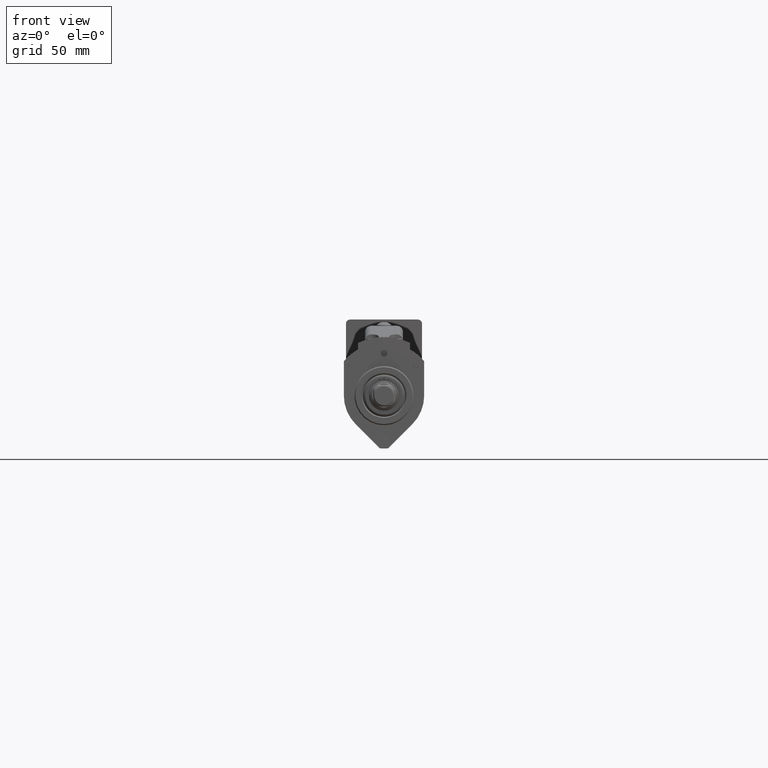
[diagram: clean part render]
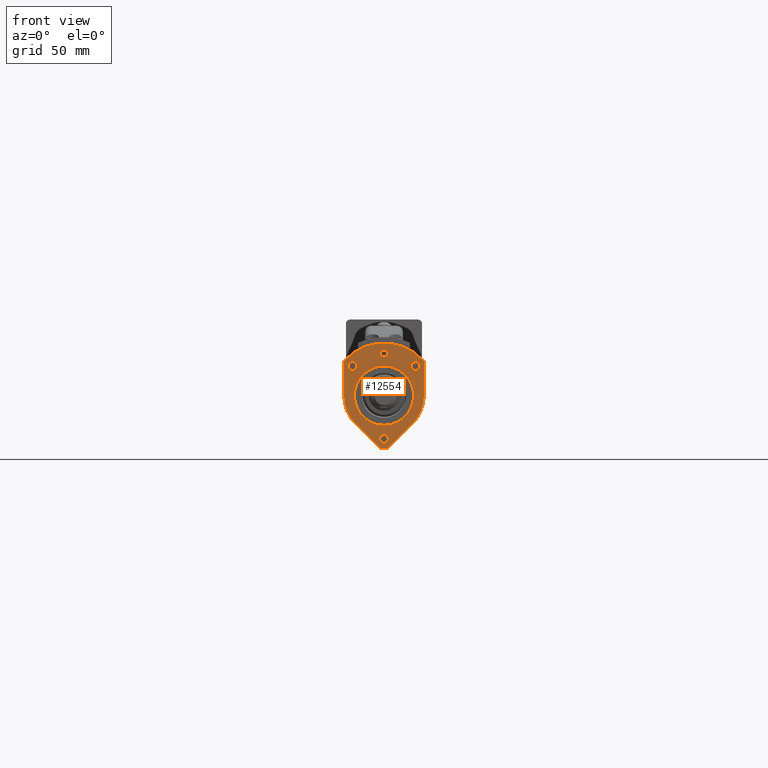
[diagram: same view with one face highlighted and labeled with its STEP entity id]
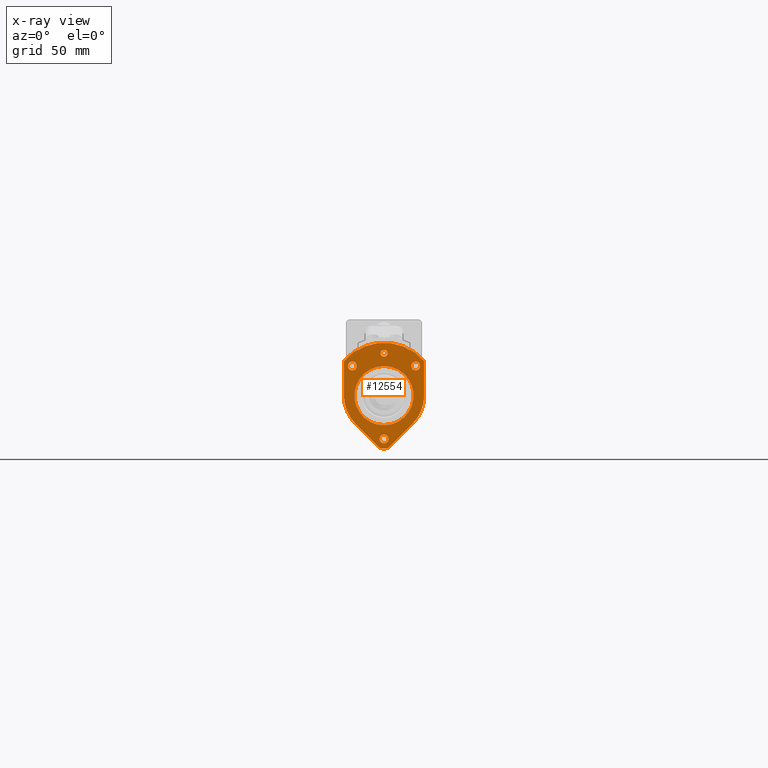
[diagram: x-ray of the same camera — body ghosted, the highlighted face saturated]
A machine part, front view. The second image highlights one B-rep face of the part: STEP entity #12554.
The next image is the same camera in x-ray: the body ghosted, the highlighted face saturated — about 0% of this face is hidden behind the body in this view.
In plain terms, the highlighted planar face has unit normal (-0, -1, 0).
Its self-contained STEP definition (entity closure, byte-faithful):
#488=FACE_BOUND('',#1690,.T.);
#489=FACE_BOUND('',#1691,.T.);
#490=FACE_BOUND('',#1692,.T.);
#491=FACE_BOUND('',#1693,.T.);
#492=FACE_BOUND('',#1694,.T.);
#948=FACE_OUTER_BOUND('',#1689,.T.);
#1689=EDGE_LOOP('',(#9619,#9620,#9621,#9622,#9623,#9624,#9625,#9626));
#1690=EDGE_LOOP('',(#9627));
#1691=EDGE_LOOP('',(#9628));
#1692=EDGE_LOOP('',(#9629));
#1693=EDGE_LOOP('',(#9630));
#1694=EDGE_LOOP('',(#9631));
#2335=CIRCLE('',#13584,25.);
#2336=CIRCLE('',#13585,19.);
#2337=CIRCLE('',#13586,25.);
#2338=CIRCLE('',#13587,19.);
#2339=CIRCLE('',#13588,1.621);
#2340=CIRCLE('',#13589,2.067);
#2341=CIRCLE('',#13590,2.067);
#2342=CIRCLE('',#13591,2.067);
#2343=CIRCLE('',#13592,14.);
#3263=LINE('',#20774,#4319);
#3264=LINE('',#20778,#4320);
#3265=LINE('',#20782,#4321);
#3266=LINE('',#20786,#4322);
#4319=VECTOR('',#16239,10.);
#4320=VECTOR('',#16242,10.);
#4321=VECTOR('',#16245,10.);
#4322=VECTOR('',#16248,10.);
#5380=VERTEX_POINT('',#20772);
#5381=VERTEX_POINT('',#20773);
#5382=VERTEX_POINT('',#20775);
#5383=VERTEX_POINT('',#20777);
#5384=VERTEX_POINT('',#20779);
#5385=VERTEX_POINT('',#20781);
#5386=VERTEX_POINT('',#20783);
#5387=VERTEX_POINT('',#20785);
#5388=VERTEX_POINT('',#20788);
#5389=VERTEX_POINT('',#20790);
#5390=VERTEX_POINT('',#20792);
#5391=VERTEX_POINT('',#20794);
#5392=VERTEX_POINT('',#20796);
#6890=EDGE_CURVE('',#5380,#5381,#3263,.T.);
#6891=EDGE_CURVE('',#5382,#5381,#2335,.T.);
#6892=EDGE_CURVE('',#5382,#5383,#3264,.T.);
#6893=EDGE_CURVE('',#5383,#5384,#2336,.T.);
#6894=EDGE_CURVE('',#5384,#5385,#3265,.T.);
#6895=EDGE_CURVE('',#5386,#5385,#2337,.T.);
#6896=EDGE_CURVE('',#5386,#5387,#3266,.T.);
#6897=EDGE_CURVE('',#5387,#5380,#2338,.T.);
#6898=EDGE_CURVE('',#5388,#5388,#2339,.T.);
#6899=EDGE_CURVE('',#5389,#5389,#2340,.T.);
#6900=EDGE_CURVE('',#5390,#5390,#2341,.T.);
#6901=EDGE_CURVE('',#5391,#5391,#2342,.T.);
#6902=EDGE_CURVE('',#5392,#5392,#2343,.T.);
#9619=ORIENTED_EDGE('',*,*,#6890,.T.);
#9620=ORIENTED_EDGE('',*,*,#6891,.F.);
#9621=ORIENTED_EDGE('',*,*,#6892,.T.);
#9622=ORIENTED_EDGE('',*,*,#6893,.T.);
#9623=ORIENTED_EDGE('',*,*,#6894,.T.);
#9624=ORIENTED_EDGE('',*,*,#6895,.F.);
#9625=ORIENTED_EDGE('',*,*,#6896,.T.);
#9626=ORIENTED_EDGE('',*,*,#6897,.T.);
#9627=ORIENTED_EDGE('',*,*,#6898,.T.);
#9628=ORIENTED_EDGE('',*,*,#6899,.T.);
#9629=ORIENTED_EDGE('',*,*,#6900,.T.);
#9630=ORIENTED_EDGE('',*,*,#6901,.T.);
#9631=ORIENTED_EDGE('',*,*,#6902,.T.);
#11277=PLANE('',#13583);
#12554=ADVANCED_FACE('',(#948,#488,#489,#490,#491,#492),#11277,.T.);
#13583=AXIS2_PLACEMENT_3D('',#20771,#16237,#16238);
#13584=AXIS2_PLACEMENT_3D('',#20776,#16240,#16241);
#13585=AXIS2_PLACEMENT_3D('',#20780,#16243,#16244);
#13586=AXIS2_PLACEMENT_3D('',#20784,#16246,#16247);
#13587=AXIS2_PLACEMENT_3D('',#20787,#16249,#16250);
#13588=AXIS2_PLACEMENT_3D('',#20789,#16251,#16252);
#13589=AXIS2_PLACEMENT_3D('',#20791,#16253,#16254);
#13590=AXIS2_PLACEMENT_3D('',#20793,#16255,#16256);
#13591=AXIS2_PLACEMENT_3D('',#20795,#16257,#16258);
#13592=AXIS2_PLACEMENT_3D('',#20797,#16259,#16260);
#16237=DIRECTION('center_axis',(-7.21644966006352E-16,-1.,6.14759817044665E-16));
#16238=DIRECTION('ref_axis',(-7.43588163242265E-17,-6.14759817044665E-16,
-1.));
#16239=DIRECTION('',(0.707106781186548,-9.44980884505511E-16,-0.707106781186547));
#16240=DIRECTION('center_axis',(7.21644966006352E-16,1.,-6.14759817044665E-16));
#16241=DIRECTION('ref_axis',(1.,-7.21644966006352E-16,-7.43588163242261E-17));
#16242=DIRECTION('',(0.707106781186547,-7.55792136389429E-17,0.707106781186548));
#16243=DIRECTION('center_axis',(-7.21644966006352E-16,-1.,6.14759817044665E-16));
#16244=DIRECTION('ref_axis',(-0.707106781186548,9.44980884505511E-16,0.707106781186548));
#16245=DIRECTION('',(7.43588163242265E-17,6.14759817044665E-16,1.));
#16246=DIRECTION('center_axis',(7.21644966006352E-16,1.,-6.14759817044665E-16));
#16247=DIRECTION('ref_axis',(1.,-7.21644966006352E-16,-7.43588163242261E-17));
#16248=DIRECTION('',(6.23001910964685E-17,-6.14759817044665E-16,-1.));
#16249=DIRECTION('center_axis',(-7.21644966006352E-16,-1.,6.14759817044665E-16));
#16250=DIRECTION('ref_axis',(1.,-7.21644966006352E-16,-7.43588163242261E-17));
#16251=DIRECTION('center_axis',(7.21644966006352E-16,1.,-6.14759817044665E-16));
#16252=DIRECTION('ref_axis',(1.,-7.21644966006352E-16,4.25067652152641E-17));
#16253=DIRECTION('center_axis',(7.21644966006352E-16,1.,-6.14759817044665E-16));
#16254=DIRECTION('ref_axis',(1.,-7.21644966006352E-16,4.2506765215264E-17));
#16255=DIRECTION('center_axis',(7.21644966006352E-16,1.,-6.14759817044665E-16));
#16256=DIRECTION('ref_axis',(1.,-7.21644966006352E-16,4.2506765215264E-17));
#16257=DIRECTION('center_axis',(7.21644966006352E-16,1.,-6.14759817044665E-16));
#16258=DIRECTION('ref_axis',(1.,-7.21644966006352E-16,4.2506765215264E-17));
#16259=DIRECTION('center_axis',(7.21644966006352E-16,1.,-6.14759817044665E-16));
#16260=DIRECTION('ref_axis',(1.,-7.21644966006352E-16,-7.43588163242261E-17));
#20771=CARTESIAN_POINT('Origin',(-4.79345322463326E-14,-74.,25.));
#20772=CARTESIAN_POINT('',(-13.4350288425444,-74.,-13.4350288425444));
#20773=CARTESIAN_POINT('',(-1.94590354946838,-74.,-24.9241541356204));
#20774=CARTESIAN_POINT('',(-19.6850288425444,-74.,-7.18502884254438));
#20775=CARTESIAN_POINT('',(1.9459035494683,-74.,-24.9241541356204));
#20776=CARTESIAN_POINT('Origin',(-4.97935026544383E-14,-74.,3.82165887931989E-14));
#20777=CARTESIAN_POINT('',(13.4350288425444,-74.,-13.4350288425444));
#20778=CARTESIAN_POINT('',(13.9404661960063,-74.,-12.9295914890824));
#20779=CARTESIAN_POINT('',(19.,-74.,3.68037712830386E-14));
#20780=CARTESIAN_POINT('Origin',(-4.97935026544383E-14,-74.,3.82165887931989E-14));
#20781=CARTESIAN_POINT('',(19.,-74.,16.248076809272));
#20782=CARTESIAN_POINT('',(19.,-74.,12.5));
#20783=CARTESIAN_POINT('',(-19.,-74.,16.248076809272));
#20784=CARTESIAN_POINT('Origin',(-4.97935026544383E-14,-74.,3.82165887931989E-14));
#20785=CARTESIAN_POINT('',(-19.,-74.,3.96294063033592E-14));
#20786=CARTESIAN_POINT('',(-19.,-74.,20.624038404636));
#20787=CARTESIAN_POINT('Origin',(-4.97935026544383E-14,-74.,3.82165887931989E-14));
#20788=CARTESIAN_POINT('',(-1.62100000000005,-74.,20.));
#20789=CARTESIAN_POINT('Origin',(-5.06436379587435E-14,-74.,20.));
#20790=CARTESIAN_POINT('',(12.9329999999999,-74.,14.));
#20791=CARTESIAN_POINT('Origin',(14.9999999999999,-74.,14.));
#20792=CARTESIAN_POINT('',(-17.0670000000001,-74.,14.));
#20793=CARTESIAN_POINT('Origin',(-15.0000000000001,-74.,14.));
#20794=CARTESIAN_POINT('',(-2.06700000000005,-74.,-20.5));
#20795=CARTESIAN_POINT('Origin',(-4.89221139675254E-14,-74.,-20.5));
#20796=CARTESIAN_POINT('',(-5.25490316017837E-14,-74.,-14.));
#20797=CARTESIAN_POINT('Origin',(-4.97935026544383E-14,-74.,3.82165887931989E-14));